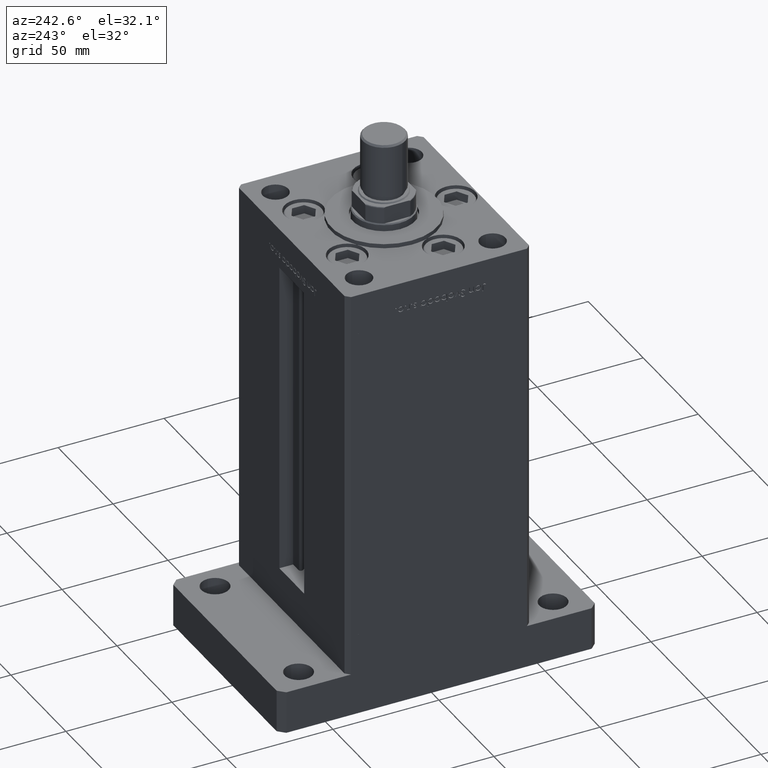
[diagram: clean part render]
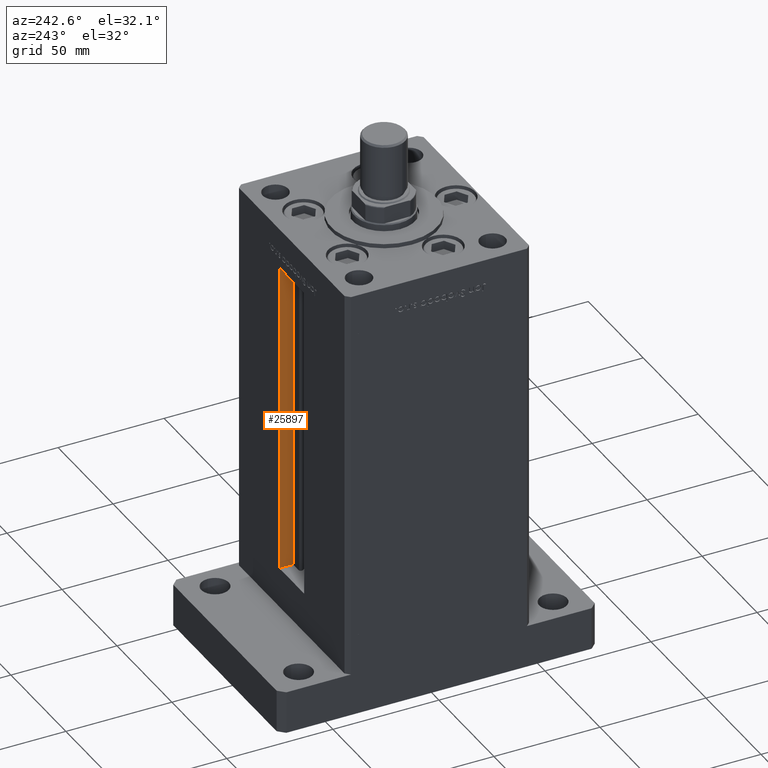
[diagram: same view with one face highlighted and labeled with its STEP entity id]
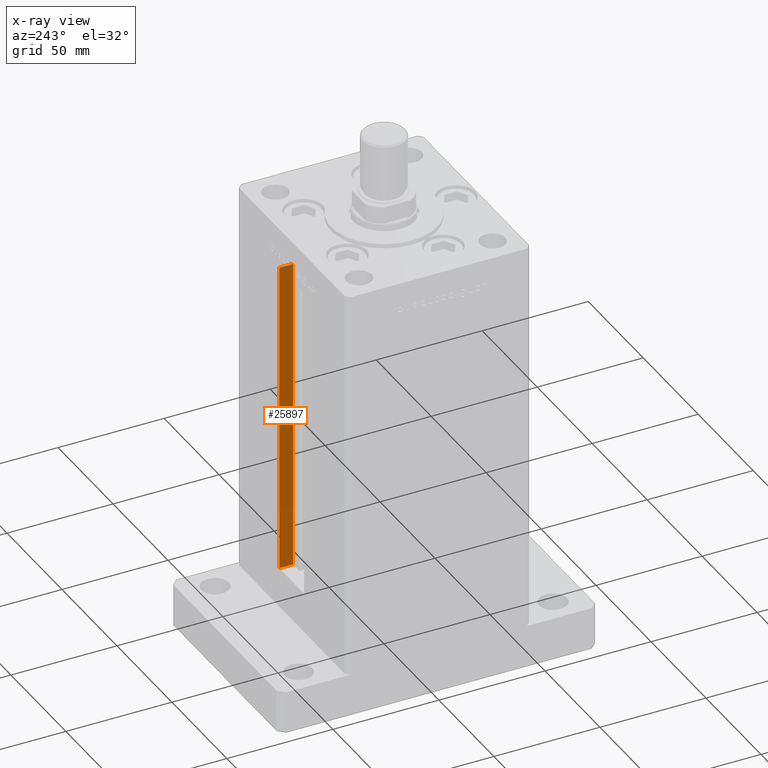
[diagram: x-ray of the same camera — body ghosted, the highlighted face saturated]
A machine part, auxiliary view. The second image highlights one B-rep face of the part: STEP entity #25897.
The next image is the same camera in x-ray: the body ghosted, the highlighted face saturated — about 0% of this face is hidden behind the body in this view.
In plain terms, the highlighted planar face has unit normal (1, 0, 0).
Its self-contained STEP definition (entity closure, byte-faithful):
#172 = CARTESIAN_POINT ( 'NONE',  ( 11.24999999999999822, 36.99999999999999289, 0.000000000000000000 ) ) ;
#655 = AXIS2_PLACEMENT_3D ( 'NONE', #172, #34128, #51098 ) ;
#692 = EDGE_CURVE ( 'NONE', #39722, #31791, #41152, .T. ) ;
#1057 = CARTESIAN_POINT ( 'NONE',  ( 11.24999999999999822, 36.99999999999999289, 0.000000000000000000 ) ) ;
#7000 = DIRECTION ( 'NONE',  ( -0.000000000000000000, -1.000000000000000000, 0.000000000000000000 ) ) ;
#8346 = CARTESIAN_POINT ( 'NONE',  ( 11.24999999999999822, 36.99999999999999289, 0.000000000000000000 ) ) ;
#8530 = ORIENTED_EDGE ( 'NONE', *, *, #50560, .F. ) ;
#11858 = CARTESIAN_POINT ( 'NONE',  ( 11.24999999999999112, 43.50000000000000000, 148.5000000000000000 ) ) ;
#11869 = CARTESIAN_POINT ( 'NONE',  ( 11.24999999999999822, 43.50000000000000000, 0.000000000000000000 ) ) ;
#13888 = EDGE_CURVE ( 'NONE', #31791, #35617, #48625, .T. ) ;
#17168 = FACE_OUTER_BOUND ( 'NONE', #53452, .T. ) ;
#20002 = CARTESIAN_POINT ( 'NONE',  ( 11.24999999999999822, 36.99999999999999289, 0.000000000000000000 ) ) ;
#20922 = VECTOR ( 'NONE', #30105, 1000.000000000000000 ) ;
#22539 = ORIENTED_EDGE ( 'NONE', *, *, #692, .F. ) ;
#23051 = VECTOR ( 'NONE', #29786, 1000.000000000000000 ) ;
#25897 = ADVANCED_FACE ( 'NONE', ( #17168 ), #33858, .F. ) ;
#26479 = EDGE_CURVE ( 'NONE', #50990, #35617, #34465, .T. ) ;
#29786 = DIRECTION ( 'NONE',  ( 0.000000000000000000, 1.000000000000000000, 0.000000000000000000 ) ) ;
#30105 = DIRECTION ( 'NONE',  ( -0.000000000000000000, -0.000000000000000000, 1.000000000000000000 ) ) ;
#30559 = VECTOR ( 'NONE', #7000, 1000.000000000000000 ) ;
#31791 = VERTEX_POINT ( 'NONE', #11858 ) ;
#33858 = PLANE ( 'NONE',  #655 ) ;
#34128 = DIRECTION ( 'NONE',  ( 1.000000000000000000, -0.000000000000000000, 0.000000000000000000 ) ) ;
#34465 = LINE ( 'NONE', #1057, #20922 ) ;
#35617 = VERTEX_POINT ( 'NONE', #46994 ) ;
#36768 = DIRECTION ( 'NONE',  ( -0.000000000000000000, -0.000000000000000000, 1.000000000000000000 ) ) ;
#39722 = VERTEX_POINT ( 'NONE', #43387 ) ;
#41152 = LINE ( 'NONE', #11869, #52540 ) ;
#43387 = CARTESIAN_POINT ( 'NONE',  ( 11.24999999999999822, 43.50000000000000000, 0.000000000000000000 ) ) ;
#44108 = LINE ( 'NONE', #20002, #23051 ) ;
#44252 = CARTESIAN_POINT ( 'NONE',  ( 11.24999999999999822, 0.000000000000000000, 148.5000000000000000 ) ) ;
#46994 = CARTESIAN_POINT ( 'NONE',  ( 11.24999999999999822, 36.99999999999999289, 148.5000000000000000 ) ) ;
#47496 = ORIENTED_EDGE ( 'NONE', *, *, #26479, .T. ) ;
#48625 = LINE ( 'NONE', #44252, #30559 ) ;
#50560 = EDGE_CURVE ( 'NONE', #50990, #39722, #44108, .T. ) ;
#50990 = VERTEX_POINT ( 'NONE', #8346 ) ;
#51098 = DIRECTION ( 'NONE',  ( 0.000000000000000000, 0.000000000000000000, -1.000000000000000000 ) ) ;
#51334 = ORIENTED_EDGE ( 'NONE', *, *, #13888, .F. ) ;
#52540 = VECTOR ( 'NONE', #36768, 1000.000000000000000 ) ;
#53452 = EDGE_LOOP ( 'NONE', ( #22539, #8530, #47496, #51334 ) ) ;